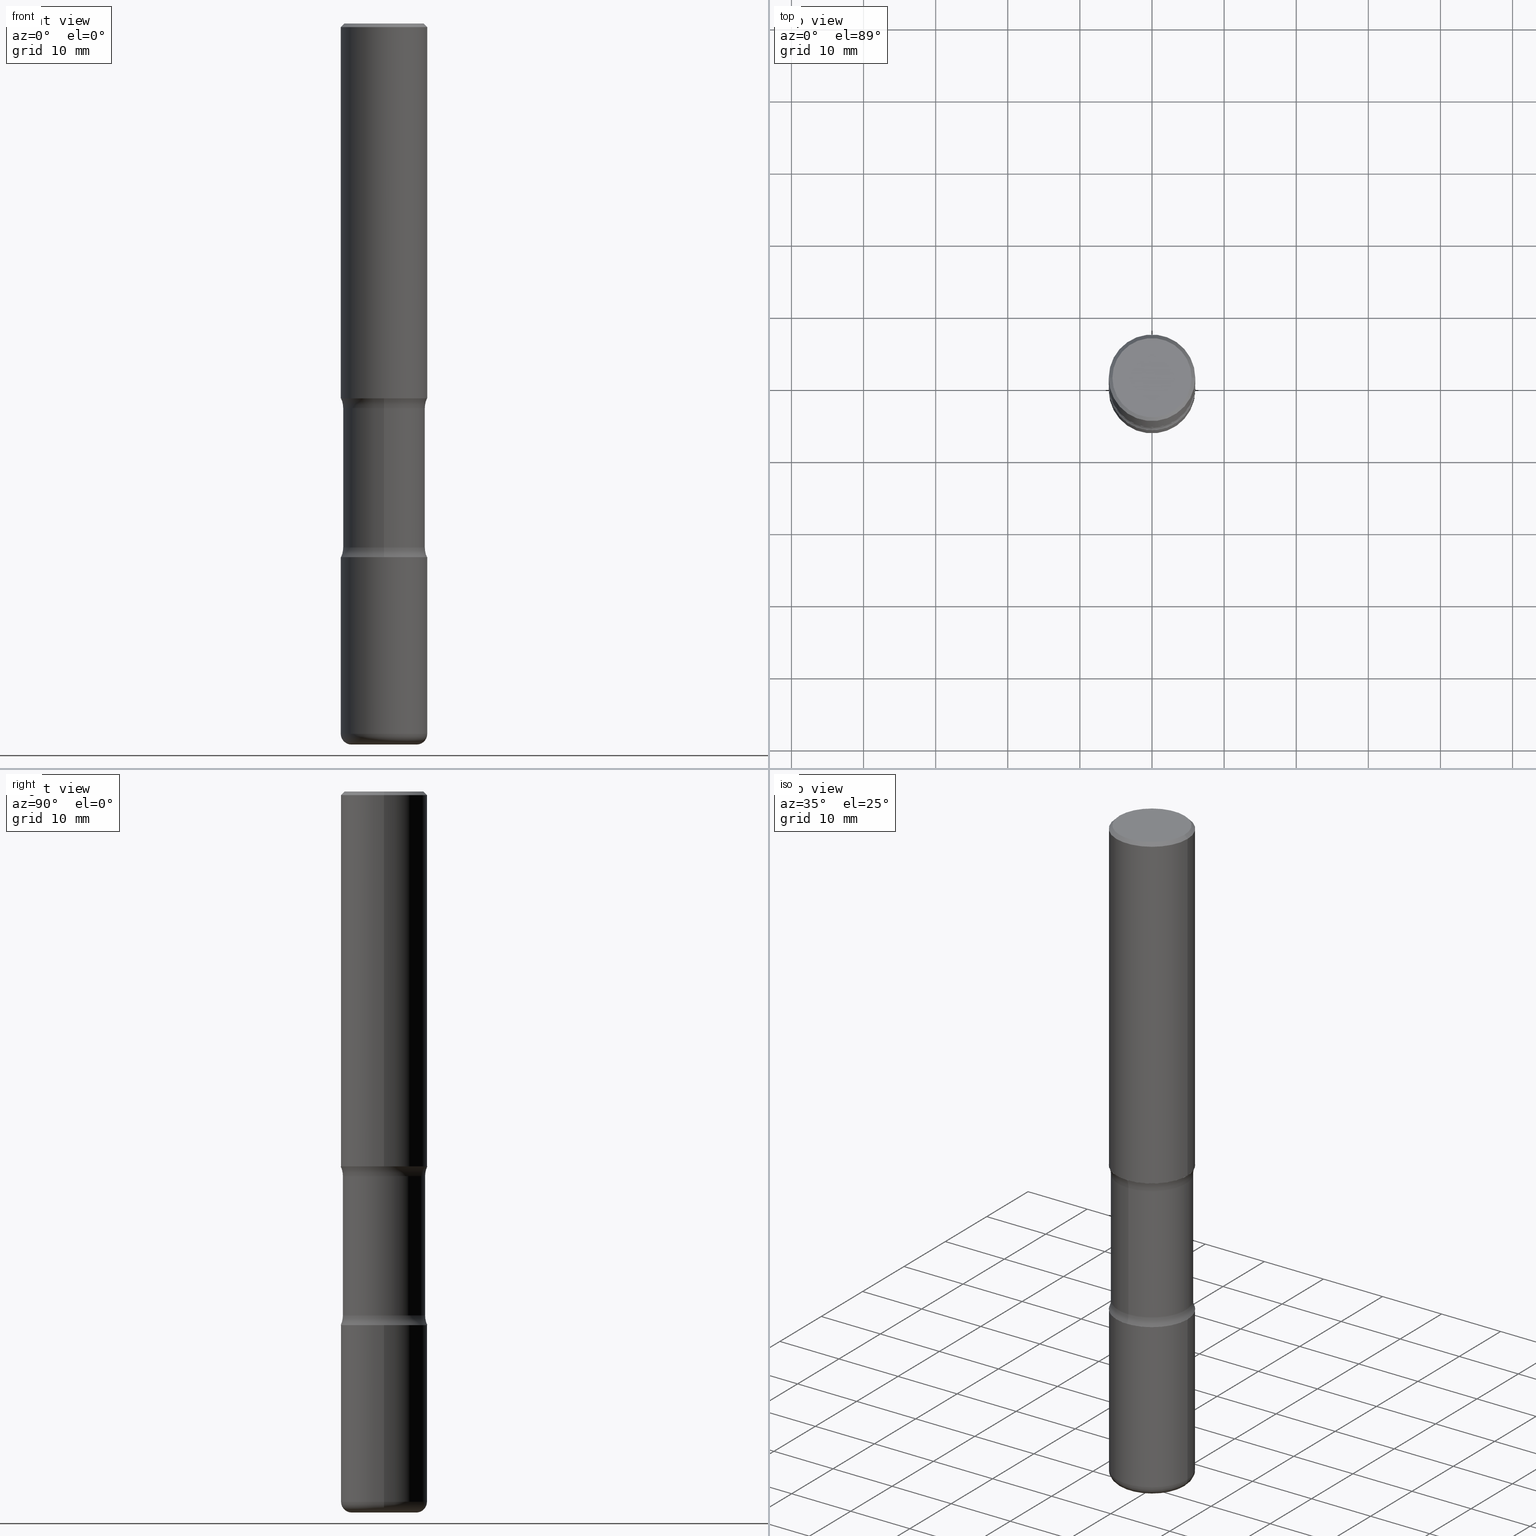
[diagram: canonical four-view strip — front | top / right | iso, engineering-drawing reading convention]
A machine part, canonical four-view strip (front | top / right | iso — engineering-drawing reading convention). The complete STEP part file that produces these views, byte-faithful:
ISO-10303-21;
HEADER;
FILE_DESCRIPTION (( 'STEP AP203' ),
    '1' );
FILE_NAME ('47700.STEP',
    '2024-03-02T07:26:43',
    ( '' ),
    ( '' ),
    'SwSTEP 2.0',
    'SolidWorks 2023',
    '' );
FILE_SCHEMA (( 'CONFIG_CONTROL_DESIGN' ));
ENDSEC;

DATA;
#1 = EDGE_CURVE ( 'NONE', #122, #125, #542, .T. ) ;
#2 = CC_DESIGN_SECURITY_CLASSIFICATION ( #309, ( #25 ) ) ;
#3 = CARTESIAN_POINT ( 'NONE',  ( -0.1771000000000002295, -1.228124429886869218E-14, -3.877899999999999014 ) ) ;
#4 = APPROVAL_DATE_TIME ( #401, #303 ) ;
#5 = AXIS2_PLACEMENT_3D ( 'NONE', #531, #327, #449 ) ;
#6 = AXIS2_PLACEMENT_3D ( 'NONE', #541, #149, #80 ) ;
#7 = ADVANCED_FACE ( 'NONE', ( #296 ), #350, .F. ) ;
#8 = DIRECTION ( 'NONE',  ( -2.445468806185136877E-29, 3.491481338843145188E-15, 1.000000000000000000 ) ) ;
#9 = CARTESIAN_POINT ( 'NONE',  ( -1.620449627073587747E-15, -0.2362000000000074318, -2.047199999999999243 ) ) ;
#10 = CARTESIAN_POINT ( 'NONE',  ( 9.627810689950879185E-29, -1.374596203102545868E-14, -3.936999999999998501 ) ) ;
#11 = CARTESIAN_POINT ( 'NONE',  ( 9.483283483505337853E-29, -1.353961548389983144E-14, -3.877899999999999014 ) ) ;
#12 = ADVANCED_FACE ( 'NONE', ( #346 ), #489, .F. ) ;
#13 = AXIS2_PLACEMENT_3D ( 'NONE', #61, #226, #185 ) ;
#14 = AXIS2_PLACEMENT_3D ( 'NONE', #132, #217, #355 ) ;
#15 = CIRCLE ( 'NONE', #381, 0.2243999999999999606 ) ;
#16 = CARTESIAN_POINT ( 'NONE',  ( -0.1771000000000002295, -1.217445219401439645E-14, -3.936999999999998501 ) ) ;
#17 = FACE_OUTER_BOUND ( 'NONE', #219, .T. ) ;
#18 = CARTESIAN_POINT ( 'NONE',  ( 4.890937612370289799E-31, -6.982962677686315028E-17, -0.02000000000000006981 ) ) ;
#19 = CARTESIAN_POINT ( 'NONE',  ( 9.710227154047748282E-29, -1.362793696358492956E-14, -3.937000000000000277 ) ) ;
#20 = EDGE_LOOP ( 'NONE', ( #174, #78, #62, #277 ) ) ;
#21 = CARTESIAN_POINT ( 'NONE',  ( -1.579972688886713168E-15, -0.2244000000000099804, -2.860383398826404466 ) ) ;
#22 = DIRECTION ( 'NONE',  ( -2.445468806185136597E-29, 3.491481338843145583E-15, 1.000000000000000000 ) ) ;
#23 = ORIENTED_EDGE ( 'NONE', *, *, #448, .F. ) ;
#24 = ADVANCED_FACE ( 'NONE', ( #388 ), #202, .T. ) ;
#25 = PRODUCT_DEFINITION_FORMATION_WITH_SPECIFIED_SOURCE ( 'ANY', '', #201, .NOT_KNOWN. ) ;
#26 = CARTESIAN_POINT ( 'NONE',  ( 5.088323202950023588E-29, -7.401163270367792936E-15, -2.100216601173595432 ) ) ;
#27 = EDGE_CURVE ( 'NONE', #47, #197, #34, .T. ) ;
#28 = ADVANCED_FACE ( 'NONE', ( #291 ), #337, .F. ) ;
#29 = ORIENTED_EDGE ( 'NONE', *, *, #27, .T. ) ;
#30 = ORIENTED_EDGE ( 'NONE', *, *, #133, .T. ) ;
#31 = CLOSED_SHELL ( 'NONE', ( #161, #365, #298, #548, #24, #252 ) ) ;
#32 = DIRECTION ( 'NONE',  ( -2.445468806185136877E-29, 3.491481338843145188E-15, 1.000000000000000000 ) ) ;
#33 = EDGE_LOOP ( 'NONE', ( #256, #173, #225, #60 ) ) ;
#34 = LINE ( 'NONE', #430, #63 ) ;
#35 = DIRECTION ( 'NONE',  ( 6.982962677686265922E-15, 1.000000000000000000, -2.313165108945183485E-15 ) ) ;
#36 = PRODUCT_DEFINITION ( 'UNKNOWN', '', #25, #43 ) ;
#37 = DATE_TIME_ROLE ( 'classification_date' ) ;
#38 = DIRECTION ( 'NONE',  ( 6.982962677686265922E-15, 1.000000000000000000, -3.376177443336566513E-15 ) ) ;
#39 = CALENDAR_DATE ( 2024, 2, 3 ) ;
#40 = AXIS2_PLACEMENT_3D ( 'NONE', #299, #552, #248 ) ;
#41 = TOROIDAL_SURFACE ( 'NONE', #167, 0.1771000000000002295, 0.05909999999999966669 ) ;
#42 = APPROVAL_PERSON_ORGANIZATION ( #528, #119, #440 ) ;
#43 = DESIGN_CONTEXT ( 'detailed design', #101, 'design' ) ;
#44 = CARTESIAN_POINT ( 'NONE',  ( 4.890937612370289799E-31, -6.982962677686315028E-17, -0.02000000000000006981 ) ) ;
#45 = COORDINATED_UNIVERSAL_TIME_OFFSET ( 5, 0, .BEHIND. ) ;
#46 = DIRECTION ( 'NONE',  ( -2.445468806185136597E-29, 3.491481338843145583E-15, 1.000000000000000000 ) ) ;
#47 = VERTEX_POINT ( 'NONE', #385 ) ;
#48 = EDGE_CURVE ( 'NONE', #122, #124, #51, .T. ) ;
#49 = PERSON_AND_ORGANIZATION_ROLE ( 'classification_officer' ) ;
#50 = CARTESIAN_POINT ( 'NONE',  ( -0.2361999999999998823, 1.579546157692632438E-15, -0.02000000000000006981 ) ) ;
#51 = CIRCLE ( 'NONE', #390, 0.2161999999999998368 ) ;
#52 = AXIS2_PLACEMENT_3D ( 'NONE', #11, #22, #67 ) ;
#53 = APPROVAL_PERSON_ORGANIZATION ( #177, #303, #477 ) ;
#54 = CARTESIAN_POINT ( 'NONE',  ( -1.539495750699834052E-15, -0.2244000000000135608, -3.936999999999999389 ) ) ;
#55 = DIRECTION ( 'NONE',  ( 6.982962677686265922E-15, 1.000000000000000000, -3.469747663417773452E-15 ) ) ;
#56 = ORIENTED_EDGE ( 'NONE', *, *, #442, .F. ) ;
#57 = CC_DESIGN_DATE_AND_TIME_ASSIGNMENT ( #522, #313, ( #36 ) ) ;
#58 = CARTESIAN_POINT ( 'NONE',  ( -1.579972688886734072E-15, -0.2244000000000073713, -2.100216601173594544 ) ) ;
#59 = CARTESIAN_POINT ( 'NONE',  ( -0.2361999999999998823, 1.579546157692632438E-15, -0.02000000000000006981 ) ) ;
#60 = ORIENTED_EDGE ( 'NONE', *, *, #228, .F. ) ;
#61 = CARTESIAN_POINT ( 'NONE',  ( 6.990709676060807691E-29, -9.993088279580958225E-15, -2.860383398826405354 ) ) ;
#62 = ORIENTED_EDGE ( 'NONE', *, *, #317, .T. ) ;
#63 = VECTOR ( 'NONE', #554, 39.37007874015748143 ) ;
#64 = APPLICATION_CONTEXT ( 'configuration controlled 3d designs of mechanical parts and assemblies' ) ;
#65 = CIRCLE ( 'NONE', #208, 0.2243999999999999606 ) ;
#66 = DIRECTION ( 'NONE',  ( 2.438088387897960049E-29, -3.491481338843145188E-15, -1.000000000000000000 ) ) ;
#67 = DIRECTION ( 'NONE',  ( 1.000000000000000000, -6.982962677686266711E-15, 0.000000000000000000 ) ) ;
#68 = VERTEX_POINT ( 'NONE', #525 ) ;
#69 = PLANE ( 'NONE',  #86 ) ;
#70 = ORIENTED_EDGE ( 'NONE', *, *, #397, .T. ) ;
#71 = EDGE_CURVE ( 'NONE', #366, #68, #320, .T. ) ;
#72 = AXIS2_PLACEMENT_3D ( 'NONE', #85, #260, #38 ) ;
#73 = CIRCLE ( 'NONE', #178, 0.1250000000000000000 ) ;
#74 = DIRECTION ( 'NONE',  ( 2.525985086076564115E-29, -3.376177443336566513E-15, -1.000000000000000000 ) ) ;
#75 = DIRECTION ( 'NONE',  ( -2.445468806185136597E-29, 3.491481338843145583E-15, 1.000000000000000000 ) ) ;
#76 = EDGE_CURVE ( 'NONE', #108, #393, #480, .T. ) ;
#77 = EDGE_CURVE ( 'NONE', #124, #122, #126, .T. ) ;
#78 = ORIENTED_EDGE ( 'NONE', *, *, #403, .F. ) ;
#79 = DIRECTION ( 'NONE',  ( 1.000000000000000000, -6.982962677686266711E-15, 0.000000000000000000 ) ) ;
#80 = DIRECTION ( 'NONE',  ( 1.000000000000000000, -6.982962677686266711E-15, 4.883557194083113462E-29 ) ) ;
#81 = ORIENTED_EDGE ( 'NONE', *, *, #378, .T. ) ;
#82 = CIRCLE ( 'NONE', #404, 0.1249999999999999029 ) ;
#83 =( GEOMETRIC_REPRESENTATION_CONTEXT ( 3 ) GLOBAL_UNCERTAINTY_ASSIGNED_CONTEXT ( ( #394 ) ) GLOBAL_UNIT_ASSIGNED_CONTEXT ( ( #384, #172, #255 ) ) REPRESENTATION_CONTEXT ( 'NONE', 'WORKASPACE' ) );
#84 = PERSON_AND_ORGANIZATION_ROLE ( 'design_supplier' ) ;
#85 = CARTESIAN_POINT ( 'NONE',  ( 6.994978375559792251E-29, -9.986975258939122984E-15, -2.860383398826405354 ) ) ;
#86 = AXIS2_PLACEMENT_3D ( 'NONE', #143, #414, #282 ) ;
#87 = AXIS2_PLACEMENT_3D ( 'NONE', #44, #438, #400 ) ;
#88 = AXIS2_PLACEMENT_3D ( 'NONE', #10, #99, #192 ) ;
#89 = ORIENTED_EDGE ( 'NONE', *, *, #1, .T. ) ;
#90 = CALENDAR_DATE ( 2024, 2, 3 ) ;
#91 = EDGE_CURVE ( 'NONE', #558, #306, #423, .T. ) ;
#92 = ORIENTED_EDGE ( 'NONE', *, *, #523, .F. ) ;
#93 = DATE_AND_TIME ( #530, #286 ) ;
#94 = CARTESIAN_POINT ( 'NONE',  ( -0.2161999999999998368, 1.544631344304201183E-15, 4.268512490089730842E-18 ) ) ;
#95 = DIRECTION ( 'NONE',  ( 2.438088387897960049E-29, -3.491481338843145188E-15, -1.000000000000000000 ) ) ;
#96 = EDGE_LOOP ( 'NONE', ( #500, #240, #323, #331 ) ) ;
#97 = AXIS2_PLACEMENT_3D ( 'NONE', #361, #402, #266 ) ;
#98 = VECTOR ( 'NONE', #499, 39.37007874015748143 ) ;
#99 = DIRECTION ( 'NONE',  ( -2.445468806185136597E-29, 3.491481338843145583E-15, 1.000000000000000000 ) ) ;
#100 = LINE ( 'NONE', #364, #511 ) ;
#101 = APPLICATION_CONTEXT ( 'configuration controlled 3d designs of mechanical parts and assemblies' ) ;
#102 = CARTESIAN_POINT ( 'NONE',  ( 7.124628819939777829E-29, -1.017208173258562247E-14, -2.913400000000000212 ) ) ;
#103 = CARTESIAN_POINT ( 'NONE',  ( 5.006363740022212241E-29, -7.147760596879688202E-15, -2.047200000000000131 ) ) ;
#104 = ORIENTED_EDGE ( 'NONE', *, *, #353, .F. ) ;
#105 = FACE_OUTER_BOUND ( 'NONE', #250, .T. ) ;
#106 = CARTESIAN_POINT ( 'NONE',  ( 4.936620538380257512E-29, -7.247636831167487464E-15, -2.047200000000000131 ) ) ;
#107 = EDGE_LOOP ( 'NONE', ( #376, #503, #512, #435 ) ) ;
#108 = VERTEX_POINT ( 'NONE', #529 ) ;
#109 = AXIS2_PLACEMENT_3D ( 'NONE', #26, #469, #559 ) ;
#110 = CIRCLE ( 'NONE', #342, 0.2362000000000002431 ) ;
#111 = CYLINDRICAL_SURFACE ( 'NONE', #359, 0.2243999999999999329 ) ;
#112 = DIRECTION ( 'NONE',  ( 1.000000000000000000, -6.982962677686265922E-15, 4.876176775795935793E-29 ) ) ;
#113 = ADVANCED_FACE ( 'NONE', ( #140 ), #214, .T. ) ;
#114 = ORIENTED_EDGE ( 'NONE', *, *, #353, .T. ) ;
#115 = DIRECTION ( 'NONE',  ( -2.445468806185136597E-29, 3.491481338843145583E-15, 1.000000000000000000 ) ) ;
#116 = ORIENTED_EDGE ( 'NONE', *, *, #403, .T. ) ;
#117 = CARTESIAN_POINT ( 'NONE',  ( 0.000000000000000000, 0.000000000000000000, 0.000000000000000000 ) ) ;
#118 = CARTESIAN_POINT ( 'NONE',  ( 5.006363740022212241E-29, -7.147760596879688202E-15, -2.047200000000000131 ) ) ;
#119 = APPROVAL ( #179, 'UNSPECIFIED' ) ;
#120 = CIRCLE ( 'NONE', #137, 0.2362000000000001321 ) ;
#121 = CARTESIAN_POINT ( 'NONE',  ( -0.2362000000000001321, -1.017754666637736977E-14, -2.913400000000000212 ) ) ;
#122 = VERTEX_POINT ( 'NONE', #94 ) ;
#123 = CARTESIAN_POINT ( 'NONE',  ( 1.649375784469546815E-15, 0.2361999999999930266, -2.047200000000001019 ) ) ;
#124 = VERTEX_POINT ( 'NONE', #271 ) ;
#125 = VERTEX_POINT ( 'NONE', #50 ) ;
#126 = CIRCLE ( 'NONE', #14, 0.2161999999999998368 ) ;
#127 = CIRCLE ( 'NONE', #297, 0.2361999999999998823 ) ;
#128 = LOCAL_TIME ( 2, 26, 43.00000000000000000, #524 ) ;
#129 = EDGE_CURVE ( 'NONE', #366, #125, #221, .T. ) ;
#130 = ORIENTED_EDGE ( 'NONE', *, *, #77, .T. ) ;
#131 = ADVANCED_FACE ( 'NONE', ( #518 ), #136, .F. ) ;
#132 = CARTESIAN_POINT ( 'NONE',  ( -1.043851414335219820E-46, 1.490343170380447200E-32, 4.268512490100411279E-18 ) ) ;
#133 = EDGE_CURVE ( 'NONE', #487, #125, #519, .T. ) ;
#134 = FACE_OUTER_BOUND ( 'NONE', #275, .T. ) ;
#135 = APPROVAL_DATE_TIME ( #358, #488 ) ;
#136 = TOROIDAL_SURFACE ( 'NONE', #72, 0.3493999999999999884, 0.1250000000000000000 ) ;
#137 = AXIS2_PLACEMENT_3D ( 'NONE', #300, #258, #35 ) ;
#138 = AXIS2_PLACEMENT_3D ( 'NONE', #117, #212, #168 ) ;
#139 = PERSON_AND_ORGANIZATION ( #349, #490 ) ;
#140 = FACE_OUTER_BOUND ( 'NONE', #147, .T. ) ;
#141 = FACE_OUTER_BOUND ( 'NONE', #396, .T. ) ;
#142 = MANIFOLD_SOLID_BREP ( 'Body-Move/Copy2[1]', #31 ) ;
#143 = CARTESIAN_POINT ( 'NONE',  ( 7.124628819939777829E-29, -1.017208173258562247E-14, -2.913400000000000212 ) ) ;
#144 = CIRCLE ( 'NONE', #88, 0.1771000000000002295 ) ;
#145 = ORIENTED_EDGE ( 'NONE', *, *, #76, .F. ) ;
#146 = DIRECTION ( 'NONE',  ( 6.982962677686265922E-15, 1.000000000000000000, -3.376177443336566513E-15 ) ) ;
#147 = EDGE_LOOP ( 'NONE', ( #534, #206, #421, #229 ) ) ;
#148 = FACE_OUTER_BOUND ( 'NONE', #468, .T. ) ;
#149 = DIRECTION ( 'NONE',  ( -2.445468806185136597E-29, 3.491481338843145583E-15, 1.000000000000000000 ) ) ;
#150 = DIRECTION ( 'NONE',  ( -0.7071067811865472397, 2.468850131082253905E-15, -0.7071067811865477948 ) ) ;
#151 = EDGE_CURVE ( 'NONE', #197, #210, #368, .T. ) ;
#152 = CYLINDRICAL_SURFACE ( 'NONE', #253, 0.2362000000000001598 ) ;
#153 = EDGE_LOOP ( 'NONE', ( #466, #114, #328, #145 ) ) ;
#154 = CIRCLE ( 'NONE', #330, 0.2362000000000001321 ) ;
#155 = AXIS2_PLACEMENT_3D ( 'NONE', #311, #510, #338 ) ;
#156 = ORIENTED_EDGE ( 'NONE', *, *, #261, .T. ) ;
#157 = VERTEX_POINT ( 'NONE', #374 ) ;
#158 = CARTESIAN_POINT ( 'NONE',  ( 0.2361999999999999933, -1.649375784469496131E-15, 1.151752954443000088E-29 ) ) ;
#159 = PERSON_AND_ORGANIZATION_ROLE ( 'design_owner' ) ;
#160 = DIRECTION ( 'NONE',  ( 1.000000000000000000, -6.982962677686267499E-15, 0.000000000000000000 ) ) ;
#161 = ADVANCED_FACE ( 'NONE', ( #420 ), #152, .T. ) ;
#162 = ORIENTED_EDGE ( 'NONE', *, *, #91, .T. ) ;
#163 = CARTESIAN_POINT ( 'NONE',  ( 0.000000000000000000, 0.000000000000000000, 0.000000000000000000 ) ) ;
#164 = CARTESIAN_POINT ( 'NONE',  ( -1.043851414335219820E-46, 1.490343170380447200E-32, 4.268512490100411279E-18 ) ) ;
#165 = CARTESIAN_POINT ( 'NONE',  ( 9.483283483505337853E-29, -1.353961548389983144E-14, -3.877899999999999014 ) ) ;
#166 = VERTEX_POINT ( 'NONE', #9 ) ;
#167 = AXIS2_PLACEMENT_3D ( 'NONE', #165, #516, #246 ) ;
#168 = DIRECTION ( 'NONE',  ( 1.000000000000000000, 0.000000000000000000, 0.000000000000000000 ) ) ;
#169 = ORIENTED_EDGE ( 'NONE', *, *, #550, .F. ) ;
#170 = CARTESIAN_POINT ( 'NONE',  ( 5.070539682259229331E-29, -7.426630284172150130E-15, -2.100216601173595432 ) ) ;
#171 = ORIENTED_EDGE ( 'NONE', *, *, #151, .F. ) ;
#172 =( NAMED_UNIT ( * ) PLANE_ANGLE_UNIT ( ) SI_UNIT ( $, .RADIAN. ) );
#173 = ORIENTED_EDGE ( 'NONE', *, *, #550, .T. ) ;
#174 = ORIENTED_EDGE ( 'NONE', *, *, #539, .F. ) ;
#175 = ADVANCED_FACE ( 'NONE', ( #148 ), #69, .F. ) ;
#176 = DIRECTION ( 'NONE',  ( 6.982962677686265922E-15, 1.000000000000000000, -3.652203200085913934E-15 ) ) ;
#177 = PERSON_AND_ORGANIZATION ( #349, #490 ) ;
#178 = AXIS2_PLACEMENT_3D ( 'NONE', #204, #429, #549 ) ;
#179 = APPROVAL_STATUS ( 'not_yet_approved' ) ;
#180 = COORDINATED_UNIVERSAL_TIME_OFFSET ( 5, 0, .BEHIND. ) ;
#181 = VECTOR ( 'NONE', #463, 39.37007874015748143 ) ;
#182 = PERSON_AND_ORGANIZATION_ROLE ( 'creator' ) ;
#183 = DIRECTION ( 'NONE',  ( -2.445468806185136597E-29, 3.491481338843145583E-15, 1.000000000000000000 ) ) ;
#184 = ORIENTED_EDGE ( 'NONE', *, *, #223, .T. ) ;
#185 = DIRECTION ( 'NONE',  ( 6.982962677686265922E-15, 1.000000000000000000, -2.434802133390609421E-15 ) ) ;
#186 = CC_DESIGN_PERSON_AND_ORGANIZATION_ASSIGNMENT ( #475, #182, ( #36 ) ) ;
#187 = ORIENTED_EDGE ( 'NONE', *, *, #473, .F. ) ;
#188 = DIRECTION ( 'NONE',  ( 6.982962677686265922E-15, 1.000000000000000000, -2.434802133390609815E-15 ) ) ;
#189 = DIRECTION ( 'NONE',  ( 6.982962677686265922E-15, 1.000000000000000000, -2.434802133390609421E-15 ) ) ;
#190 = ORIENTED_EDGE ( 'NONE', *, *, #317, .F. ) ;
#191 = AXIS2_PLACEMENT_3D ( 'NONE', #170, #339, #176 ) ;
#192 = DIRECTION ( 'NONE',  ( 1.000000000000000000, -6.982962677686266711E-15, 0.000000000000000000 ) ) ;
#193 = PRODUCT_RELATED_PRODUCT_CATEGORY ( 'detail', '', ( #201 ) ) ;
#194 = DIRECTION ( 'NONE',  ( 1.000000000000000000, -6.982962677686267499E-15, 0.000000000000000000 ) ) ;
#195 = DIRECTION ( 'NONE',  ( 2.525985086076564115E-29, -3.376177443336566513E-15, -1.000000000000000000 ) ) ;
#196 = ORIENTED_EDGE ( 'NONE', *, *, #48, .F. ) ;
#197 = VERTEX_POINT ( 'NONE', #329 ) ;
#198 = CLOSED_SHELL ( 'NONE', ( #293, #131, #7, #272, #28, #175, #12, #281 ) ) ;
#199 = AXIS2_PLACEMENT_3D ( 'NONE', #224, #537, #326 ) ;
#200 = PERSON_AND_ORGANIZATION ( #349, #490 ) ;
#201 = PRODUCT ( '47700', '47700', '', ( #395 ) ) ;
#202 = CYLINDRICAL_SURFACE ( 'NONE', #312, 0.2362000000000001598 ) ;
#203 = CARTESIAN_POINT ( 'NONE',  ( -0.2362000000000001598, -1.930493169962915017E-15, -2.047200000000000131 ) ) ;
#204 = CARTESIAN_POINT ( 'NONE',  ( 2.439847159583651160E-15, 0.3493999999999899964, -2.860383398826406243 ) ) ;
#205 = CARTESIAN_POINT ( 'NONE',  ( 9.627810689950879185E-29, -1.374596203102545868E-14, -3.936999999999998501 ) ) ;
#206 = ORIENTED_EDGE ( 'NONE', *, *, #129, .T. ) ;
#207 = AXIS2_PLACEMENT_3D ( 'NONE', #526, #314, #483 ) ;
#208 = AXIS2_PLACEMENT_3D ( 'NONE', #491, #278, #235 ) ;
#209 = CYLINDRICAL_SURFACE ( 'NONE', #416, 0.2361999999999999933 ) ;
#210 = VERTEX_POINT ( 'NONE', #21 ) ;
#211 = EDGE_CURVE ( 'NONE', #68, #366, #379, .T. ) ;
#212 = DIRECTION ( 'NONE',  ( 0.000000000000000000, 0.000000000000000000, 1.000000000000000000 ) ) ;
#213 = ORIENTED_EDGE ( 'NONE', *, *, #473, .T. ) ;
#214 = CYLINDRICAL_SURFACE ( 'NONE', #413, 0.2361999999999999933 ) ;
#215 = AXIS2_PLACEMENT_3D ( 'NONE', #450, #115, #288 ) ;
#216 = CC_DESIGN_PERSON_AND_ORGANIZATION_ASSIGNMENT ( #241, #159, ( #201 ) ) ;
#217 = DIRECTION ( 'NONE',  ( -2.445468806185136597E-29, 3.491481338843145583E-15, 1.000000000000000000 ) ) ;
#218 = DIRECTION ( 'NONE',  ( 7.105427357601001859E-15, 1.000000000000000000, -3.491481338843145583E-15 ) ) ;
#219 = EDGE_LOOP ( 'NONE', ( #104, #70, #382, #23 ) ) ;
#220 = CALENDAR_DATE ( 2024, 2, 3 ) ;
#221 = LINE ( 'NONE', #407, #341 ) ;
#222 = AXIS2_PLACEMENT_3D ( 'NONE', #106, #227, #412 ) ;
#223 = EDGE_CURVE ( 'NONE', #306, #558, #154, .T. ) ;
#224 = CARTESIAN_POINT ( 'NONE',  ( 1.509716530915769534E-15, 0.2161999999999998368, -7.527240092128373149E-16 ) ) ;
#225 = ORIENTED_EDGE ( 'NONE', *, *, #523, .T. ) ;
#226 = DIRECTION ( 'NONE',  ( 2.525985086076564115E-29, -3.376177443336566513E-15, -1.000000000000000000 ) ) ;
#227 = DIRECTION ( 'NONE',  ( 2.525985086076564115E-29, -3.376177443336566513E-15, -1.000000000000000000 ) ) ;
#228 = EDGE_CURVE ( 'NONE', #47, #410, #82, .T. ) ;
#229 = ORIENTED_EDGE ( 'NONE', *, *, #334, .F. ) ;
#230 = ADVANCED_BREP_SHAPE_REPRESENTATION ( '47700', ( #142, #517, #509, #138 ), #83 ) ;
#231 = DIRECTION ( 'NONE',  ( 1.000000000000000000, -6.982962677686266711E-15, 4.876176775795936353E-29 ) ) ;
#232 = DIRECTION ( 'NONE',  ( 6.860497997771529985E-15, 1.000000000000000000, 0.000000000000000000 ) ) ;
#233 = EDGE_CURVE ( 'NONE', #458, #210, #454, .T. ) ;
#234 = AXIS2_PLACEMENT_3D ( 'NONE', #205, #348, #79 ) ;
#235 = DIRECTION ( 'NONE',  ( 6.982962677686265922E-15, 1.000000000000000000, -3.652203200085913934E-15 ) ) ;
#236 = VERTEX_POINT ( 'NONE', #319 ) ;
#237 = ORIENTED_EDGE ( 'NONE', *, *, #223, .F. ) ;
#238 = DIMENSIONAL_EXPONENTS ( 1.000000000000000000, 0.000000000000000000, 0.000000000000000000, 0.000000000000000000, 0.000000000000000000, 0.000000000000000000, 0.000000000000000000 ) ;
#239 = DIRECTION ( 'NONE',  ( 2.525985086076564115E-29, -3.376177443336566513E-15, -1.000000000000000000 ) ) ;
#240 = ORIENTED_EDGE ( 'NONE', *, *, #448, .T. ) ;
#241 = PERSON_AND_ORGANIZATION ( #349, #490 ) ;
#242 = VERTEX_POINT ( 'NONE', #16 ) ;
#243 = EDGE_CURVE ( 'NONE', #108, #242, #144, .T. ) ;
#244 = VECTOR ( 'NONE', #32, 39.37007874015748143 ) ;
#245 = DIRECTION ( 'NONE',  ( 6.982962677686265922E-15, 1.000000000000000000, -3.376177443336566513E-15 ) ) ;
#246 = DIRECTION ( 'NONE',  ( 1.000000000000000000, -6.982962677686266711E-15, 4.883557194083113462E-29 ) ) ;
#247 = PRODUCT_DEFINITION_SHAPE ( 'NONE', 'NONE',  #36 ) ;
#248 = DIRECTION ( 'NONE',  ( 6.982962677686265922E-15, 1.000000000000000000, -3.376177443336566513E-15 ) ) ;
#249 = EDGE_LOOP ( 'NONE', ( #169, #506, #269, #213 ) ) ;
#250 = EDGE_LOOP ( 'NONE', ( #81, #418, #171, #471 ) ) ;
#251 = LINE ( 'NONE', #433, #244 ) ;
#252 = ADVANCED_FACE ( 'NONE', ( #287 ), #372, .F. ) ;
#253 = AXIS2_PLACEMENT_3D ( 'NONE', #411, #283, #231 ) ;
#254 = TOROIDAL_SURFACE ( 'NONE', #6, 0.1771000000000002295, 0.05909999999999966669 ) ;
#255 =( NAMED_UNIT ( * ) SI_UNIT ( $, .STERADIAN. ) SOLID_ANGLE_UNIT ( ) );
#256 = ORIENTED_EDGE ( 'NONE', *, *, #261, .F. ) ;
#257 = DIRECTION ( 'NONE',  ( -2.445468806185136597E-29, 3.491481338843145583E-15, 1.000000000000000000 ) ) ;
#258 = DIRECTION ( 'NONE',  ( 2.525985086076564115E-29, -3.376177443336566513E-15, -1.000000000000000000 ) ) ;
#259 = DATE_AND_TIME ( #90, #556 ) ;
#260 = DIRECTION ( 'NONE',  ( 2.525985086076564115E-29, -3.376177443336566513E-15, -1.000000000000000000 ) ) ;
#261 = EDGE_CURVE ( 'NONE', #458, #47, #65, .T. ) ;
#262 = COORDINATED_UNIVERSAL_TIME_OFFSET ( 5, 0, .BEHIND. ) ;
#263 = DIRECTION ( 'NONE',  ( 1.000000000000000000, -6.982962677686269077E-15, 0.000000000000000000 ) ) ;
#264 = AXIS2_PLACEMENT_3D ( 'NONE', #478, #183, #263 ) ;
#265 = CIRCLE ( 'NONE', #52, 0.2362000000000002153 ) ;
#266 = DIRECTION ( 'NONE',  ( 1.000000000000000000, -6.982962677686266711E-15, 0.000000000000000000 ) ) ;
#267 = CALENDAR_DATE ( 2024, 2, 3 ) ;
#268 = ORIENTED_EDGE ( 'NONE', *, *, #515, .F. ) ;
#269 = ORIENTED_EDGE ( 'NONE', *, *, #228, .T. ) ;
#270 = PERSON_AND_ORGANIZATION ( #349, #490 ) ;
#271 = CARTESIAN_POINT ( 'NONE',  ( 0.2161999999999998368, -1.586759460484351002E-15, 4.268512490111238857E-18 ) ) ;
#272 = ADVANCED_FACE ( 'NONE', ( #536 ), #370, .F. ) ;
#273 = DIRECTION ( 'NONE',  ( 2.525985086076564115E-29, -3.376177443336566513E-15, -1.000000000000000000 ) ) ;
#274 = AXIS2_PLACEMENT_3D ( 'NONE', #373, #553, #557 ) ;
#275 = EDGE_LOOP ( 'NONE', ( #56, #196, #89, #447 ) ) ;
#276 = CC_DESIGN_APPROVAL ( #488, ( #36 ) ) ;
#277 = ORIENTED_EDGE ( 'NONE', *, *, #151, .T. ) ;
#278 = DIRECTION ( 'NONE',  ( 2.525985086076564115E-29, -3.376177443336566513E-15, -1.000000000000000000 ) ) ;
#279 = DIRECTION ( 'NONE',  ( 0.7071067811865472397, -7.319954787623254468E-15, -0.7071067811865477948 ) ) ;
#280 = ORIENTED_EDGE ( 'NONE', *, *, #539, .T. ) ;
#281 = ADVANCED_FACE ( 'NONE', ( #498 ), #111, .T. ) ;
#282 = DIRECTION ( 'NONE',  ( -6.982962677686265922E-15, -1.000000000000000000, 3.376177443336566513E-15 ) ) ;
#283 = DIRECTION ( 'NONE',  ( -2.445468806185136597E-29, 3.491481338843145583E-15, 1.000000000000000000 ) ) ;
#284 = CARTESIAN_POINT ( 'NONE',  ( 0.2361999999999998823, -1.690279253850498179E-15, -0.02000000000000006981 ) ) ;
#285 = AXIS2_PLACEMENT_3D ( 'NONE', #389, #304, #470 ) ;
#286 = LOCAL_TIME ( 2, 26, 43.00000000000000000, #45 ) ;
#287 = FACE_OUTER_BOUND ( 'NONE', #514, .T. ) ;
#288 = DIRECTION ( 'NONE',  ( 1.000000000000000000, -6.982962677686266711E-15, 0.000000000000000000 ) ) ;
#289 = ORIENTED_EDGE ( 'NONE', *, *, #397, .F. ) ;
#290 = DIRECTION ( 'NONE',  ( 2.525985086076564115E-29, -3.376177443336566513E-15, -1.000000000000000000 ) ) ;
#291 = FACE_OUTER_BOUND ( 'NONE', #461, .T. ) ;
#292 = ORIENTED_EDGE ( 'NONE', *, *, #386, .T. ) ;
#293 = ADVANCED_FACE ( 'NONE', ( #105 ), #459, .T. ) ;
#294 = DIRECTION ( 'NONE',  ( -2.445468806185136597E-29, 3.491481338843145583E-15, 1.000000000000000000 ) ) ;
#295 = APPROVAL_STATUS ( 'not_yet_approved' ) ;
#296 = FACE_OUTER_BOUND ( 'NONE', #33, .T. ) ;
#297 = AXIS2_PLACEMENT_3D ( 'NONE', #18, #75, #160 ) ;
#298 = ADVANCED_FACE ( 'NONE', ( #141 ), #318, .T. ) ;
#299 = CARTESIAN_POINT ( 'NONE',  ( 6.994978375559792251E-29, -9.986975258939122984E-15, -2.860383398826405354 ) ) ;
#300 = CARTESIAN_POINT ( 'NONE',  ( 7.124628819939777829E-29, -1.017208173258562247E-14, -2.913400000000000212 ) ) ;
#301 = FACE_OUTER_BOUND ( 'NONE', #107, .T. ) ;
#302 = ORIENTED_EDGE ( 'NONE', *, *, #515, .T. ) ;
#303 = APPROVAL ( #352, 'UNSPECIFIED' ) ;
#304 = DIRECTION ( 'NONE',  ( 2.445468806185136597E-29, -3.491481338843145583E-15, -1.000000000000000000 ) ) ;
#305 = DIRECTION ( 'NONE',  ( 1.000000000000000000, -6.982962677686266711E-15, 4.876176775795936353E-29 ) ) ;
#306 = VERTEX_POINT ( 'NONE', #387 ) ;
#307 = AXIS2_PLACEMENT_3D ( 'NONE', #118, #74, #245 ) ;
#308 = VECTOR ( 'NONE', #273, 39.37007874015748143 ) ;
#309 = SECURITY_CLASSIFICATION ( '', '', #444 ) ;
#310 = DIRECTION ( 'NONE',  ( -2.445468806185136597E-29, 3.491481338843145583E-15, 1.000000000000000000 ) ) ;
#311 = CARTESIAN_POINT ( 'NONE',  ( 7.124628819939777829E-29, -1.017208173258562247E-14, -2.913400000000000212 ) ) ;
#312 = AXIS2_PLACEMENT_3D ( 'NONE', #472, #257, #436 ) ;
#313 = DATE_TIME_ROLE ( 'creation_date' ) ;
#314 = DIRECTION ( 'NONE',  ( -2.445468806185136597E-29, 3.491481338843145583E-15, 1.000000000000000000 ) ) ;
#315 = PERSON_AND_ORGANIZATION_ROLE ( 'creator' ) ;
#316 = CARTESIAN_POINT ( 'NONE',  ( 0.000000000000000000, 0.000000000000000000, 0.000000000000000000 ) ) ;
#317 = EDGE_CURVE ( 'NONE', #236, #197, #73, .T. ) ;
#318 = PLANE ( 'NONE',  #535 ) ;
#319 = CARTESIAN_POINT ( 'NONE',  ( 1.649375784469567917E-15, 0.2361999999999899458, -2.913400000000000656 ) ) ;
#320 = CIRCLE ( 'NONE', #264, 0.2362000000000001321 ) ;
#321 = CIRCLE ( 'NONE', #222, 0.2362000000000002431 ) ;
#322 = EDGE_LOOP ( 'NONE', ( #371, #130 ) ) ;
#323 = ORIENTED_EDGE ( 'NONE', *, *, #427, .T. ) ;
#324 = ADVANCED_FACE ( 'NONE', ( #301 ), #209, .T. ) ;
#325 = DIRECTION ( 'NONE',  ( 2.525985086076564115E-29, -3.376177443336566513E-15, -1.000000000000000000 ) ) ;
#326 = DIRECTION ( 'NONE',  ( -1.000000000000000000, 6.982962677686265922E-15, -4.876176775795935793E-29 ) ) ;
#327 = DIRECTION ( 'NONE',  ( -2.445468806185136597E-29, 3.491481338843145583E-15, 1.000000000000000000 ) ) ;
#328 = ORIENTED_EDGE ( 'NONE', *, *, #493, .F. ) ;
#329 = CARTESIAN_POINT ( 'NONE',  ( 1.566976824872867821E-15, 0.2243999999999899686, -2.860383398826405799 ) ) ;
#330 = AXIS2_PLACEMENT_3D ( 'NONE', #367, #494, #451 ) ;
#331 = ORIENTED_EDGE ( 'NONE', *, *, #91, .F. ) ;
#332 = CIRCLE ( 'NONE', #191, 0.2243999999999999606 ) ;
#333 = FACE_OUTER_BOUND ( 'NONE', #322, .T. ) ;
#334 = EDGE_CURVE ( 'NONE', #68, #487, #462, .T. ) ;
#335 = DIRECTION ( 'NONE',  ( -1.000000000000000000, 7.105427357600997914E-15, 0.000000000000000000 ) ) ;
#336 = APPLICATION_PROTOCOL_DEFINITION ( 'international standard', 'config_control_design', 1994, #101 ) ;
#337 = PLANE ( 'NONE',  #307 ) ;
#338 = DIRECTION ( 'NONE',  ( 6.982962677686265922E-15, 1.000000000000000000, -2.313165108945183485E-15 ) ) ;
#339 = DIRECTION ( 'NONE',  ( 2.525985086076564115E-29, -3.376177443336566513E-15, -1.000000000000000000 ) ) ;
#340 = CLOSED_SHELL ( 'NONE', ( #113, #419, #343, #532, #437, #324 ) ) ;
#341 = VECTOR ( 'NONE', #8, 39.37007874015748143 ) ;
#342 = AXIS2_PLACEMENT_3D ( 'NONE', #369, #195, #55 ) ;
#343 = ADVANCED_FACE ( 'NONE', ( #134 ), #502, .T. ) ;
#344 = ORIENTED_EDGE ( 'NONE', *, *, #493, .T. ) ;
#345 = DIRECTION ( 'NONE',  ( -1.000000000000000000, 6.982962677686265922E-15, -4.876176775795935793E-29 ) ) ;
#346 = FACE_OUTER_BOUND ( 'NONE', #20, .T. ) ;
#347 = LENGTH_MEASURE_WITH_UNIT ( LENGTH_MEASURE( 0.02539999999999999897 ), #426 );
#348 = DIRECTION ( 'NONE',  ( -2.445468806185136597E-29, 3.491481338843145583E-15, 1.000000000000000000 ) ) ;
#349 = PERSON ( 'UNSPECIFIED', 'UNSPECIFIED', 'UNSPECIFIED', ('UNSPECIFIED'), ('UNSPECIFIED'), ('UNSPECIFIED') ) ;
#350 = TOROIDAL_SURFACE ( 'NONE', #109, 0.3493999999999998218, 0.1249999999999999029 ) ;
#351 = CIRCLE ( 'NONE', #481, 0.1250000000000000000 ) ;
#352 = APPROVAL_STATUS ( 'not_yet_approved' ) ;
#353 = EDGE_CURVE ( 'NONE', #242, #547, #406, .T. ) ;
#354 = DIRECTION ( 'NONE',  ( 1.000000000000000000, -6.982962677686266711E-15, 4.876217060660159599E-29 ) ) ;
#355 = DIRECTION ( 'NONE',  ( 1.000000000000000000, -6.982962677686266711E-15, 4.876217060660159599E-29 ) ) ;
#356 = AXIS2_PLACEMENT_3D ( 'NONE', #476, #409, #194 ) ;
#357 = EDGE_CURVE ( 'NONE', #125, #487, #127, .T. ) ;
#358 = DATE_AND_TIME ( #267, #425 ) ;
#359 = AXIS2_PLACEMENT_3D ( 'NONE', #417, #325, #188 ) ;
#360 = CC_DESIGN_APPROVAL ( #119, ( #25 ) ) ;
#361 = CARTESIAN_POINT ( 'NONE',  ( 0.1771000000000002295, -1.477629817411807190E-14, -3.877899999999999014 ) ) ;
#362 = DIRECTION ( 'NONE',  ( 6.982962677686265922E-15, 1.000000000000000000, -2.434802133390609815E-15 ) ) ;
#363 = CARTESIAN_POINT ( 'NONE',  ( 2.439847159583631044E-15, 0.3493999999999924388, -2.100216601173596320 ) ) ;
#364 = CARTESIAN_POINT ( 'NONE',  ( 0.2361999999999998823, -1.690279253850498179E-15, -0.02000000000000006981 ) ) ;
#365 = ADVANCED_FACE ( 'NONE', ( #555 ), #41, .T. ) ;
#366 = VERTEX_POINT ( 'NONE', #203 ) ;
#367 = CARTESIAN_POINT ( 'NONE',  ( 7.124628819939777829E-29, -1.017208173258562247E-14, -2.913400000000000212 ) ) ;
#368 = CIRCLE ( 'NONE', #13, 0.2243999999999999606 ) ;
#369 = CARTESIAN_POINT ( 'NONE',  ( 4.936620538380257512E-29, -7.247636831167487464E-15, -2.047200000000000131 ) ) ;
#370 = TOROIDAL_SURFACE ( 'NONE', #434, 0.3493999999999998218, 0.1249999999999999029 ) ;
#371 = ORIENTED_EDGE ( 'NONE', *, *, #48, .T. ) ;
#372 = PLANE ( 'NONE',  #399 ) ;
#373 = CARTESIAN_POINT ( 'NONE',  ( -2.397058000421320660E-15, -0.3494000000000072048, -2.100216601173594544 ) ) ;
#374 = CARTESIAN_POINT ( 'NONE',  ( -1.620449627073565067E-15, -0.2362000000000102629, -2.913399999999999768 ) ) ;
#375 = PLANE ( 'NONE',  #199 ) ;
#376 = ORIENTED_EDGE ( 'NONE', *, *, #129, .F. ) ;
#377 = ORIENTED_EDGE ( 'NONE', *, *, #442, .T. ) ;
#378 = EDGE_CURVE ( 'NONE', #47, #458, #332, .T. ) ;
#379 = CIRCLE ( 'NONE', #5, 0.2362000000000001321 ) ;
#380 = ORIENTED_EDGE ( 'NONE', *, *, #427, .F. ) ;
#381 = AXIS2_PLACEMENT_3D ( 'NONE', #460, #290, #189 ) ;
#382 = ORIENTED_EDGE ( 'NONE', *, *, #76, .T. ) ;
#383 = ORIENTED_EDGE ( 'NONE', *, *, #243, .F. ) ;
#384 =( CONVERSION_BASED_UNIT ( 'INCH', #347 ) LENGTH_UNIT ( ) NAMED_UNIT ( #238 ) );
#385 = CARTESIAN_POINT ( 'NONE',  ( 1.566976824872848494E-15, 0.2243999999999925499, -2.100216601173596320 ) ) ;
#386 = EDGE_CURVE ( 'NONE', #157, #236, #120, .T. ) ;
#387 = CARTESIAN_POINT ( 'NONE',  ( 0.2362000000000001321, -1.182145751705511899E-14, -2.913400000000000212 ) ) ;
#388 = FACE_OUTER_BOUND ( 'NONE', #96, .T. ) ;
#389 = CARTESIAN_POINT ( 'NONE',  ( 4.890937612370289799E-31, -6.982962677686315028E-17, -0.02000000000000006981 ) ) ;
#390 = AXIS2_PLACEMENT_3D ( 'NONE', #164, #46, #354 ) ;
#391 = ORIENTED_EDGE ( 'NONE', *, *, #386, .F. ) ;
#392 = APPROVAL_PERSON_ORGANIZATION ( #200, #488, #464 ) ;
#393 = VERTEX_POINT ( 'NONE', #513 ) ;
#394 = UNCERTAINTY_MEASURE_WITH_UNIT (LENGTH_MEASURE( 1.000000000000000082E-05 ), #384, 'distance_accuracy_value', 'NONE');
#395 = MECHANICAL_CONTEXT ( 'NONE', #64, 'mechanical' ) ;
#396 = EDGE_LOOP ( 'NONE', ( #383, #289 ) ) ;
#397 = EDGE_CURVE ( 'NONE', #242, #108, #441, .T. ) ;
#398 = LINE ( 'NONE', #492, #98 ) ;
#399 = AXIS2_PLACEMENT_3D ( 'NONE', #102, #66, #501 ) ;
#400 = DIRECTION ( 'NONE',  ( -1.000000000000000000, 6.982962677686267499E-15, 0.000000000000000000 ) ) ;
#401 = DATE_AND_TIME ( #39, #457 ) ;
#402 = DIRECTION ( 'NONE',  ( -6.982962677686266711E-15, -1.000000000000000000, 3.491481338843145583E-15 ) ) ;
#403 = EDGE_CURVE ( 'NONE', #236, #157, #424, .T. ) ;
#404 = AXIS2_PLACEMENT_3D ( 'NONE', #363, #533, #543 ) ;
#405 = COORDINATED_UNIVERSAL_TIME_OFFSET ( 5, 0, .BEHIND. ) ;
#406 = CIRCLE ( 'NONE', #520, 0.05909999999999968751 ) ;
#407 = CARTESIAN_POINT ( 'NONE',  ( -0.2361999999999999933, 1.678301941865356591E-15, -1.161852468318208757E-29 ) ) ;
#408 = CC_DESIGN_DATE_AND_TIME_ASSIGNMENT ( #259, #37, ( #309 ) ) ;
#409 = DIRECTION ( 'NONE',  ( -2.445468806185136597E-29, 3.491481338843145583E-15, 1.000000000000000000 ) ) ;
#410 = VERTEX_POINT ( 'NONE', #123 ) ;
#411 = CARTESIAN_POINT ( 'NONE',  ( 0.000000000000000000, 0.000000000000000000, 0.000000000000000000 ) ) ;
#412 = DIRECTION ( 'NONE',  ( 6.982962677686265922E-15, 1.000000000000000000, -3.469747663417773452E-15 ) ) ;
#413 = AXIS2_PLACEMENT_3D ( 'NONE', #316, #310, #484 ) ;
#414 = DIRECTION ( 'NONE',  ( -2.525985086076564115E-29, 3.376177443336566513E-15, 1.000000000000000000 ) ) ;
#415 = CARTESIAN_POINT ( 'NONE',  ( -0.2362000000000000766, -1.186131354203447347E-14, -3.877899999999999014 ) ) ;
#416 = AXIS2_PLACEMENT_3D ( 'NONE', #163, #294, #305 ) ;
#417 = CARTESIAN_POINT ( 'NONE',  ( 9.710227154047748282E-29, -1.362793696358492956E-14, -3.937000000000000277 ) ) ;
#418 = ORIENTED_EDGE ( 'NONE', *, *, #233, .T. ) ;
#419 = ADVANCED_FACE ( 'NONE', ( #508 ), #445, .T. ) ;
#420 = FACE_OUTER_BOUND ( 'NONE', #485, .T. ) ;
#421 = ORIENTED_EDGE ( 'NONE', *, *, #133, .F. ) ;
#422 = EDGE_LOOP ( 'NONE', ( #507, #538 ) ) ;
#423 = CIRCLE ( 'NONE', #207, 0.2362000000000001321 ) ;
#424 = CIRCLE ( 'NONE', #155, 0.2362000000000001321 ) ;
#425 = LOCAL_TIME ( 2, 26, 43.00000000000000000, #180 ) ;
#426 =( LENGTH_UNIT ( ) NAMED_UNIT ( * ) SI_UNIT ( $, .METRE. ) );
#427 = EDGE_CURVE ( 'NONE', #393, #306, #251, .T. ) ;
#428 = EDGE_CURVE ( 'NONE', #547, #558, #398, .T. ) ;
#429 = DIRECTION ( 'NONE',  ( -1.000000000000000000, 6.982962677686265922E-15, -4.883557194083112340E-29 ) ) ;
#430 = CARTESIAN_POINT ( 'NONE',  ( 1.566976824872894642E-15, 0.2243999999999863049, -3.937000000000000721 ) ) ;
#431 = ORIENTED_EDGE ( 'NONE', *, *, #428, .T. ) ;
#432 = ORIENTED_EDGE ( 'NONE', *, *, #77, .F. ) ;
#433 = CARTESIAN_POINT ( 'NONE',  ( 0.2362000000000001598, -1.649375784469497314E-15, 1.151752954443000929E-29 ) ) ;
#434 = AXIS2_PLACEMENT_3D ( 'NONE', #446, #540, #146 ) ;
#435 = ORIENTED_EDGE ( 'NONE', *, *, #357, .F. ) ;
#436 = DIRECTION ( 'NONE',  ( 1.000000000000000000, -6.982962677686266711E-15, 4.876176775795936353E-29 ) ) ;
#437 = ADVANCED_FACE ( 'NONE', ( #544 ), #504, .F. ) ;
#438 = DIRECTION ( 'NONE',  ( 2.445468806185136597E-29, -3.491481338843145583E-15, -1.000000000000000000 ) ) ;
#439 = APPROVAL_DATE_TIME ( #93, #119 ) ;
#440 = APPROVAL_ROLE ( '' ) ;
#441 = CIRCLE ( 'NONE', #234, 0.1771000000000002295 ) ;
#442 = EDGE_CURVE ( 'NONE', #124, #487, #100, .T. ) ;
#443 = ORIENTED_EDGE ( 'NONE', *, *, #233, .F. ) ;
#444 = SECURITY_CLASSIFICATION_LEVEL ( 'unclassified' ) ;
#445 = CONICAL_SURFACE ( 'NONE', #285, 0.2361999999999998823, 0.7853981633974479459 ) ;
#446 = CARTESIAN_POINT ( 'NONE',  ( 5.088323202950023588E-29, -7.401163270367792936E-15, -2.100216601173595432 ) ) ;
#447 = ORIENTED_EDGE ( 'NONE', *, *, #357, .T. ) ;
#448 = EDGE_CURVE ( 'NONE', #547, #393, #465, .T. ) ;
#449 = DIRECTION ( 'NONE',  ( 1.000000000000000000, -6.982962677686269077E-15, 0.000000000000000000 ) ) ;
#450 = CARTESIAN_POINT ( 'NONE',  ( 9.483283483505337853E-29, -1.353961548389983144E-14, -3.877899999999999014 ) ) ;
#451 = DIRECTION ( 'NONE',  ( 1.000000000000000000, -6.982962677686269077E-15, 0.000000000000000000 ) ) ;
#452 = DIRECTION ( 'NONE',  ( 1.000000000000000000, -6.860497997771530774E-15, 4.842210945089756248E-29 ) ) ;
#453 = SHAPE_DEFINITION_REPRESENTATION ( #247, #230 ) ;
#454 = LINE ( 'NONE', #54, #308 ) ;
#455 = AXIS2_PLACEMENT_3D ( 'NONE', #103, #456, #112 ) ;
#456 = DIRECTION ( 'NONE',  ( -2.438088387897960049E-29, 3.491481338843145188E-15, 1.000000000000000000 ) ) ;
#457 = LOCAL_TIME ( 2, 26, 43.00000000000000000, #262 ) ;
#458 = VERTEX_POINT ( 'NONE', #58 ) ;
#459 = CYLINDRICAL_SURFACE ( 'NONE', #527, 0.2243999999999999329 ) ;
#460 = CARTESIAN_POINT ( 'NONE',  ( 6.990709676060807691E-29, -9.993088279580958225E-15, -2.860383398826405354 ) ) ;
#461 = EDGE_LOOP ( 'NONE', ( #187, #92 ) ) ;
#462 = LINE ( 'NONE', #158, #181 ) ;
#463 = DIRECTION ( 'NONE',  ( -2.445468806185136877E-29, 3.491481338843145188E-15, 1.000000000000000000 ) ) ;
#464 = APPROVAL_ROLE ( '' ) ;
#465 = CIRCLE ( 'NONE', #215, 0.2362000000000002153 ) ;
#466 = ORIENTED_EDGE ( 'NONE', *, *, #243, .T. ) ;
#467 = APPLICATION_PROTOCOL_DEFINITION ( 'international standard', 'config_control_design', 1994, #64 ) ;
#468 = EDGE_LOOP ( 'NONE', ( #116, #292 ) ) ;
#469 = DIRECTION ( 'NONE',  ( 2.525985086076564115E-29, -3.376177443336566513E-15, -1.000000000000000000 ) ) ;
#470 = DIRECTION ( 'NONE',  ( -1.000000000000000000, 6.982962677686267499E-15, 0.000000000000000000 ) ) ;
#471 = ORIENTED_EDGE ( 'NONE', *, *, #27, .F. ) ;
#472 = CARTESIAN_POINT ( 'NONE',  ( 0.000000000000000000, 0.000000000000000000, 0.000000000000000000 ) ) ;
#473 = EDGE_CURVE ( 'NONE', #410, #166, #321, .T. ) ;
#474 = CIRCLE ( 'NONE', #274, 0.1249999999999999029 ) ;
#475 = PERSON_AND_ORGANIZATION ( #349, #490 ) ;
#476 = CARTESIAN_POINT ( 'NONE',  ( 4.890937612370289799E-31, -6.982962677686315028E-17, -0.02000000000000006981 ) ) ;
#477 = APPROVAL_ROLE ( '' ) ;
#478 = CARTESIAN_POINT ( 'NONE',  ( 5.006363740022212241E-29, -7.147760596879688202E-15, -2.047200000000000131 ) ) ;
#479 = CC_DESIGN_PERSON_AND_ORGANIZATION_ASSIGNMENT ( #482, #49, ( #309 ) ) ;
#480 = CIRCLE ( 'NONE', #97, 0.05909999999999968751 ) ;
#481 = AXIS2_PLACEMENT_3D ( 'NONE', #495, #452, #232 ) ;
#482 = PERSON_AND_ORGANIZATION ( #349, #490 ) ;
#483 = DIRECTION ( 'NONE',  ( 1.000000000000000000, -6.982962677686269077E-15, 0.000000000000000000 ) ) ;
#484 = DIRECTION ( 'NONE',  ( 1.000000000000000000, -6.982962677686266711E-15, 4.876176775795936353E-29 ) ) ;
#485 = EDGE_LOOP ( 'NONE', ( #344, #431, #237, #380 ) ) ;
#486 = CARTESIAN_POINT ( 'NONE',  ( 3.507233613011477657E-28, 2.269204661173973947E-14, -3.936999999999998945 ) ) ;
#487 = VERTEX_POINT ( 'NONE', #284 ) ;
#488 = APPROVAL ( #295, 'UNSPECIFIED' ) ;
#489 = TOROIDAL_SURFACE ( 'NONE', #40, 0.3493999999999999884, 0.1250000000000000000 ) ;
#490 = ORGANIZATION ( 'UNSPECIFIED', 'UNSPECIFIED', '' ) ;
#491 = CARTESIAN_POINT ( 'NONE',  ( 5.070539682259229331E-29, -7.426630284172150130E-15, -2.100216601173595432 ) ) ;
#492 = CARTESIAN_POINT ( 'NONE',  ( -0.2362000000000001598, 1.678301941865357775E-15, -1.161852468318209598E-29 ) ) ;
#493 = EDGE_CURVE ( 'NONE', #393, #547, #265, .T. ) ;
#494 = DIRECTION ( 'NONE',  ( -2.445468806185136597E-29, 3.491481338843145583E-15, 1.000000000000000000 ) ) ;
#495 = CARTESIAN_POINT ( 'NONE',  ( -2.397058000421302516E-15, -0.3494000000000099249, -2.860383398826404022 ) ) ;
#496 = EDGE_LOOP ( 'NONE', ( #432, #377, #30, #545 ) ) ;
#497 = CC_DESIGN_PERSON_AND_ORGANIZATION_ASSIGNMENT ( #139, #315, ( #25 ) ) ;
#498 = FACE_OUTER_BOUND ( 'NONE', #560, .T. ) ;
#499 = DIRECTION ( 'NONE',  ( -2.445468806185136877E-29, 3.491481338843145188E-15, 1.000000000000000000 ) ) ;
#500 = ORIENTED_EDGE ( 'NONE', *, *, #428, .F. ) ;
#501 = DIRECTION ( 'NONE',  ( -1.000000000000000000, 6.982962677686265922E-15, -4.876176775795935793E-29 ) ) ;
#502 = CONICAL_SURFACE ( 'NONE', #87, 0.2361999999999998823, 0.7853981633974479459 ) ;
#503 = ORIENTED_EDGE ( 'NONE', *, *, #71, .T. ) ;
#504 = PLANE ( 'NONE',  #455 ) ;
#505 = CC_DESIGN_PERSON_AND_ORGANIZATION_ASSIGNMENT ( #270, #84, ( #25 ) ) ;
#506 = ORIENTED_EDGE ( 'NONE', *, *, #378, .F. ) ;
#507 = ORIENTED_EDGE ( 'NONE', *, *, #211, .F. ) ;
#508 = FACE_OUTER_BOUND ( 'NONE', #496, .T. ) ;
#509 = MANIFOLD_SOLID_BREP ( 'Body-Move/Copy2[4]', #198 ) ;
#510 = DIRECTION ( 'NONE',  ( 2.525985086076564115E-29, -3.376177443336566513E-15, -1.000000000000000000 ) ) ;
#511 = VECTOR ( 'NONE', #279, 39.37007874015748143 ) ;
#512 = ORIENTED_EDGE ( 'NONE', *, *, #334, .T. ) ;
#513 = CARTESIAN_POINT ( 'NONE',  ( 0.2362000000000000766, -1.518899126836932954E-14, -3.877899999999999014 ) ) ;
#514 = EDGE_LOOP ( 'NONE', ( #184, #162 ) ) ;
#515 = EDGE_CURVE ( 'NONE', #210, #197, #15, .T. ) ;
#516 = DIRECTION ( 'NONE',  ( -2.445468806185136597E-29, 3.491481338843145583E-15, 1.000000000000000000 ) ) ;
#517 = MANIFOLD_SOLID_BREP ( 'Body-Move/Copy2[2]', #340 ) ;
#518 = FACE_OUTER_BOUND ( 'NONE', #551, .T. ) ;
#519 = CIRCLE ( 'NONE', #356, 0.2361999999999998823 ) ;
#520 = AXIS2_PLACEMENT_3D ( 'NONE', #3, #218, #335 ) ;
#521 = CC_DESIGN_APPROVAL ( #303, ( #309 ) ) ;
#522 = DATE_AND_TIME ( #220, #128 ) ;
#523 = EDGE_CURVE ( 'NONE', #166, #410, #110, .T. ) ;
#524 = COORDINATED_UNIVERSAL_TIME_OFFSET ( 5, 0, .BEHIND. ) ;
#525 = CARTESIAN_POINT ( 'NONE',  ( 0.2362000000000001321, -8.797136381349186305E-15, -2.047200000000000131 ) ) ;
#526 = CARTESIAN_POINT ( 'NONE',  ( 7.124628819939777829E-29, -1.017208173258562247E-14, -2.913400000000000212 ) ) ;
#527 = AXIS2_PLACEMENT_3D ( 'NONE', #19, #239, #362 ) ;
#528 = PERSON_AND_ORGANIZATION ( #349, #490 ) ;
#529 = CARTESIAN_POINT ( 'NONE',  ( 0.1771000000000002295, -1.498264472124369914E-14, -3.936999999999998501 ) ) ;
#530 = CALENDAR_DATE ( 2024, 2, 3 ) ;
#531 = CARTESIAN_POINT ( 'NONE',  ( 5.006363740022212241E-29, -7.147760596879688202E-15, -2.047200000000000131 ) ) ;
#532 = ADVANCED_FACE ( 'NONE', ( #333 ), #375, .F. ) ;
#533 = DIRECTION ( 'NONE',  ( -1.000000000000000000, 6.982962677686265922E-15, -4.883557194083112340E-29 ) ) ;
#534 = ORIENTED_EDGE ( 'NONE', *, *, #211, .T. ) ;
#535 = AXIS2_PLACEMENT_3D ( 'NONE', #486, #95, #345 ) ;
#536 = FACE_OUTER_BOUND ( 'NONE', #249, .T. ) ;
#537 = DIRECTION ( 'NONE',  ( 2.438088387897960049E-29, -3.491481338843145188E-15, -1.000000000000000000 ) ) ;
#538 = ORIENTED_EDGE ( 'NONE', *, *, #71, .F. ) ;
#539 = EDGE_CURVE ( 'NONE', #157, #210, #351, .T. ) ;
#540 = DIRECTION ( 'NONE',  ( 2.525985086076564115E-29, -3.376177443336566513E-15, -1.000000000000000000 ) ) ;
#541 = CARTESIAN_POINT ( 'NONE',  ( 9.483283483505337853E-29, -1.353961548389983144E-14, -3.877899999999999014 ) ) ;
#542 = LINE ( 'NONE', #59, #546 ) ;
#543 = DIRECTION ( 'NONE',  ( -6.982962677686264344E-15, -1.000000000000000000, 0.000000000000000000 ) ) ;
#544 = FACE_OUTER_BOUND ( 'NONE', #422, .T. ) ;
#545 = ORIENTED_EDGE ( 'NONE', *, *, #1, .F. ) ;
#546 = VECTOR ( 'NONE', #150, 39.37007874015748143 ) ;
#547 = VERTEX_POINT ( 'NONE', #415 ) ;
#548 = ADVANCED_FACE ( 'NONE', ( #17 ), #254, .T. ) ;
#549 = DIRECTION ( 'NONE',  ( -6.982962677686266711E-15, -1.000000000000000000, 0.000000000000000000 ) ) ;
#550 = EDGE_CURVE ( 'NONE', #458, #166, #474, .T. ) ;
#551 = EDGE_LOOP ( 'NONE', ( #391, #280, #302, #190 ) ) ;
#552 = DIRECTION ( 'NONE',  ( 2.525985086076564115E-29, -3.376177443336566513E-15, -1.000000000000000000 ) ) ;
#553 = DIRECTION ( 'NONE',  ( 1.000000000000000000, -6.860497997771530774E-15, 4.842210945089756248E-29 ) ) ;
#554 = DIRECTION ( 'NONE',  ( 2.525985086076564115E-29, -3.376177443336566513E-15, -1.000000000000000000 ) ) ;
#555 = FACE_OUTER_BOUND ( 'NONE', #153, .T. ) ;
#556 = LOCAL_TIME ( 2, 26, 43.00000000000000000, #405 ) ;
#557 = DIRECTION ( 'NONE',  ( 6.860497997771531562E-15, 1.000000000000000000, 0.000000000000000000 ) ) ;
#558 = VERTEX_POINT ( 'NONE', #121 ) ;
#559 = DIRECTION ( 'NONE',  ( 6.982962677686265922E-15, 1.000000000000000000, -3.376177443336566513E-15 ) ) ;
#560 = EDGE_LOOP ( 'NONE', ( #443, #156, #29, #268 ) ) ;
ENDSEC;
END-ISO-10303-21;
